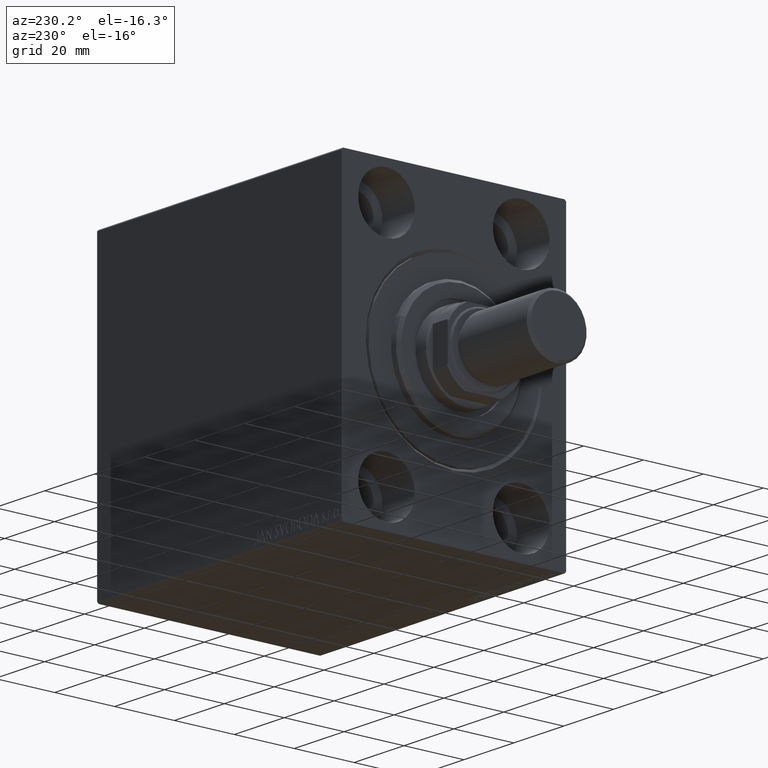
[diagram: clean part render]
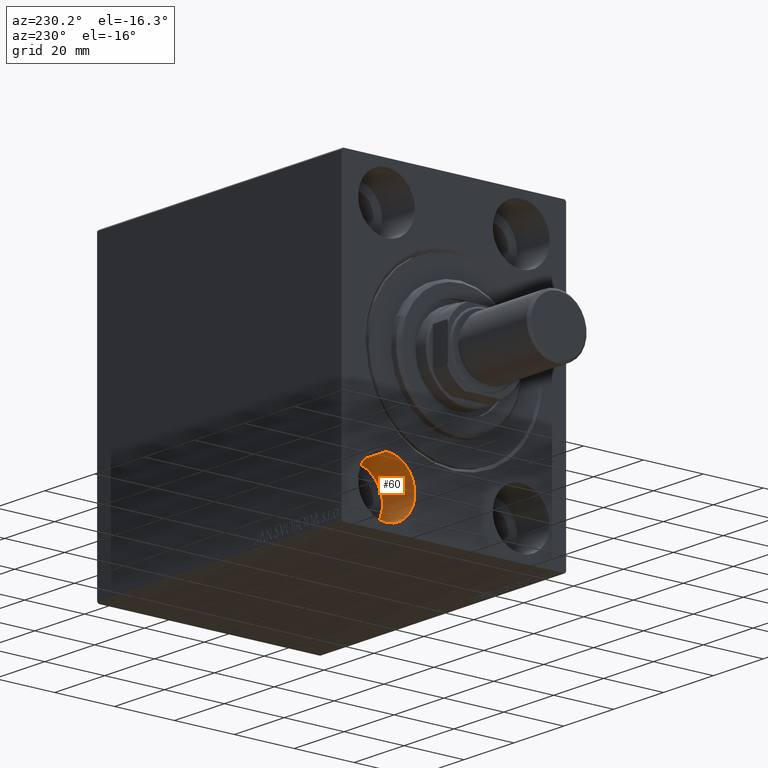
[diagram: same view with one face highlighted and labeled with its STEP entity id]
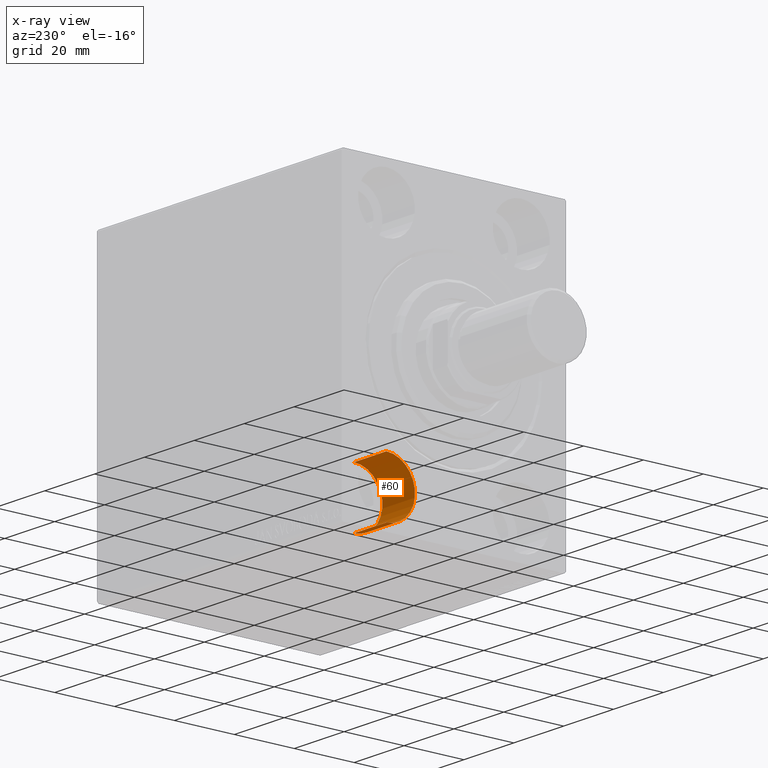
[diagram: x-ray of the same camera — body ghosted, the highlighted face saturated]
A machine part, auxiliary view. The second image highlights one B-rep face of the part: STEP entity #60.
The next image is the same camera in x-ray: the body ghosted, the highlighted face saturated — about 0% of this face is hidden behind the body in this view.
In plain terms, the highlighted cylindrical surface (partial cylindrical patch) has radius 9.5 mm, axis along (-1, -0, -0).
Its self-contained STEP definition (entity closure, byte-faithful):
#60 = ADVANCED_FACE ( 'NONE', ( #4067 ), #10813, .F. ) ;
#3936 = CARTESIAN_POINT ( 'NONE',  ( 0.000000000000000000, 22.49999999999999645, -28.49999999999998934 ) ) ;
#4067 = FACE_OUTER_BOUND ( 'NONE', #19781, .T. ) ;
#4310 = VERTEX_POINT ( 'NONE', #31088 ) ;
#5890 = EDGE_CURVE ( 'NONE', #33221, #44582, #19093, .T. ) ;
#6582 = DIRECTION ( 'NONE',  ( -1.000000000000000000, -0.000000000000000000, -0.000000000000000000 ) ) ;
#7863 = EDGE_CURVE ( 'NONE', #4310, #44582, #29919, .T. ) ;
#8111 = VERTEX_POINT ( 'NONE', #12966 ) ;
#10743 = ORIENTED_EDGE ( 'NONE', *, *, #7863, .F. ) ;
#10813 = CYLINDRICAL_SURFACE ( 'NONE', #22622, 9.500000000000001776 ) ;
#12464 = ORIENTED_EDGE ( 'NONE', *, *, #5890, .T. ) ;
#12966 = CARTESIAN_POINT ( 'NONE',  ( 13.00000000000000000, 22.49999999999999645, -47.49999999999999289 ) ) ;
#13319 = CARTESIAN_POINT ( 'NONE',  ( 13.00000000000000000, 22.49999999999999645, -47.49999999999999289 ) ) ;
#13761 = LINE ( 'NONE', #13319, #36142 ) ;
#15200 = CARTESIAN_POINT ( 'NONE',  ( 0.000000000000000000, 22.49999999999999645, -37.99999999999999289 ) ) ;
#17580 = DIRECTION ( 'NONE',  ( 0.000000000000000000, 0.000000000000000000, 1.000000000000000000 ) ) ;
#17770 = CARTESIAN_POINT ( 'NONE',  ( 13.00000000000000000, 22.49999999999999645, -37.99999999999999289 ) ) ;
#19093 = CIRCLE ( 'NONE', #35634, 9.500000000000001776 ) ;
#19781 = EDGE_LOOP ( 'NONE', ( #41696, #31775, #12464, #10743 ) ) ;
#22622 = AXIS2_PLACEMENT_3D ( 'NONE', #41045, #34706, #17580 ) ;
#25560 = DIRECTION ( 'NONE',  ( -1.000000000000000000, 0.000000000000000000, 0.000000000000000000 ) ) ;
#26974 = CARTESIAN_POINT ( 'NONE',  ( 13.00000000000000000, 22.49999999999999645, -28.49999999999998934 ) ) ;
#27898 = DIRECTION ( 'NONE',  ( 0.000000000000000000, 0.000000000000000000, 1.000000000000000000 ) ) ;
#27944 = CARTESIAN_POINT ( 'NONE',  ( 0.000000000000000000, 22.49999999999999645, -47.49999999999999289 ) ) ;
#29919 = LINE ( 'NONE', #26974, #41451 ) ;
#31088 = CARTESIAN_POINT ( 'NONE',  ( 13.00000000000000000, 22.49999999999999645, -28.49999999999998934 ) ) ;
#31520 = DIRECTION ( 'NONE',  ( -1.000000000000000000, 0.000000000000000000, 0.000000000000000000 ) ) ;
#31775 = ORIENTED_EDGE ( 'NONE', *, *, #38109, .T. ) ;
#33221 = VERTEX_POINT ( 'NONE', #27944 ) ;
#34706 = DIRECTION ( 'NONE',  ( -1.000000000000000000, -0.000000000000000000, -0.000000000000000000 ) ) ;
#35634 = AXIS2_PLACEMENT_3D ( 'NONE', #15200, #25560, #42699 ) ;
#36142 = VECTOR ( 'NONE', #6582, 1000.000000000000000 ) ;
#36824 = AXIS2_PLACEMENT_3D ( 'NONE', #17770, #31520, #27898 ) ;
#38109 = EDGE_CURVE ( 'NONE', #8111, #33221, #13761, .T. ) ;
#38246 = CIRCLE ( 'NONE', #36824, 9.500000000000001776 ) ;
#40116 = EDGE_CURVE ( 'NONE', #8111, #4310, #38246, .T. ) ;
#41045 = CARTESIAN_POINT ( 'NONE',  ( 13.00000000000000000, 22.49999999999999645, -37.99999999999999289 ) ) ;
#41451 = VECTOR ( 'NONE', #43675, 1000.000000000000000 ) ;
#41696 = ORIENTED_EDGE ( 'NONE', *, *, #40116, .F. ) ;
#42699 = DIRECTION ( 'NONE',  ( 0.000000000000000000, 0.000000000000000000, 1.000000000000000000 ) ) ;
#43675 = DIRECTION ( 'NONE',  ( -1.000000000000000000, -0.000000000000000000, -0.000000000000000000 ) ) ;
#44582 = VERTEX_POINT ( 'NONE', #3936 ) ;